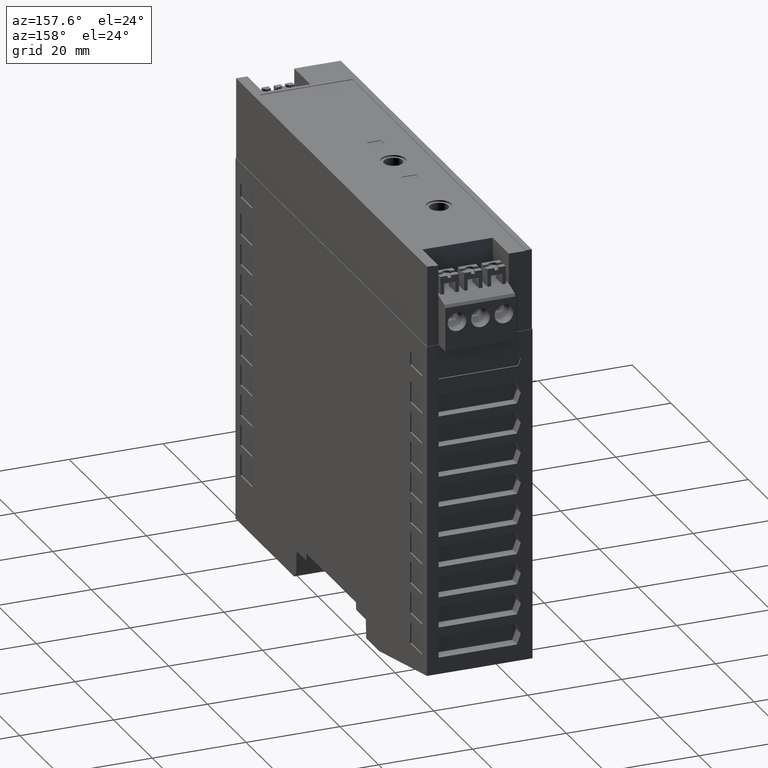
[diagram: clean part render]
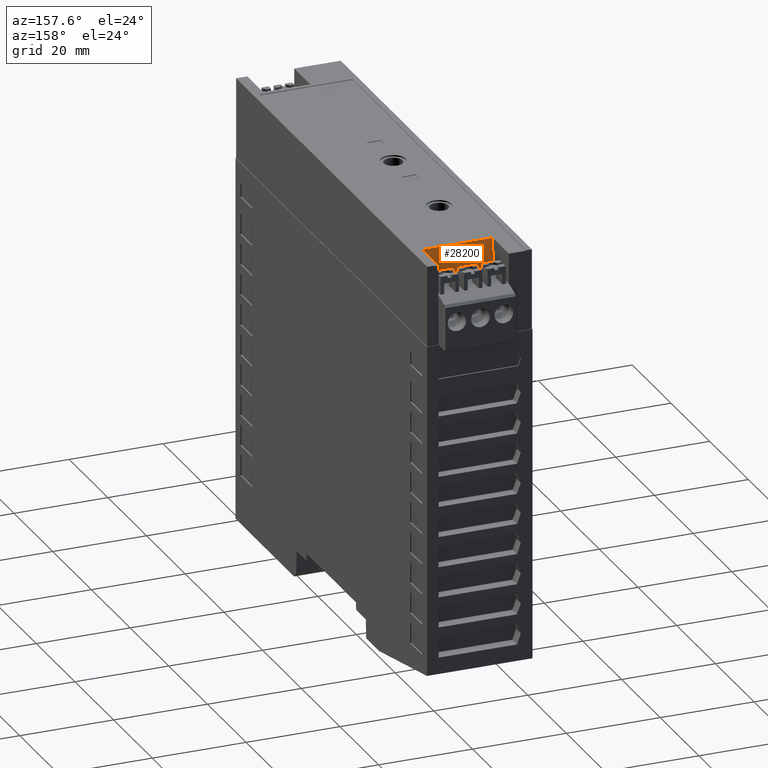
[diagram: same view with one face highlighted and labeled with its STEP entity id]
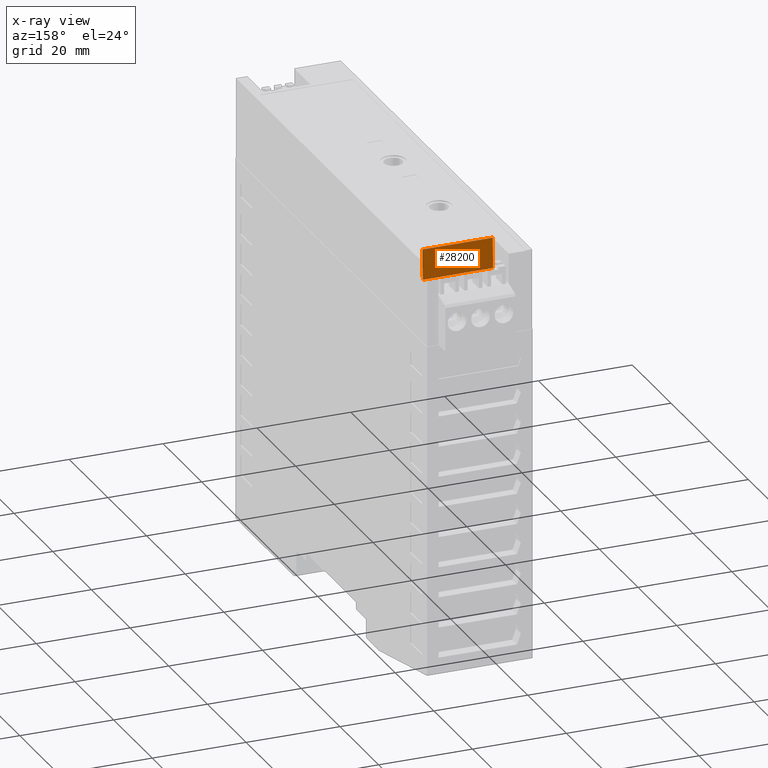
[diagram: x-ray of the same camera — body ghosted, the highlighted face saturated]
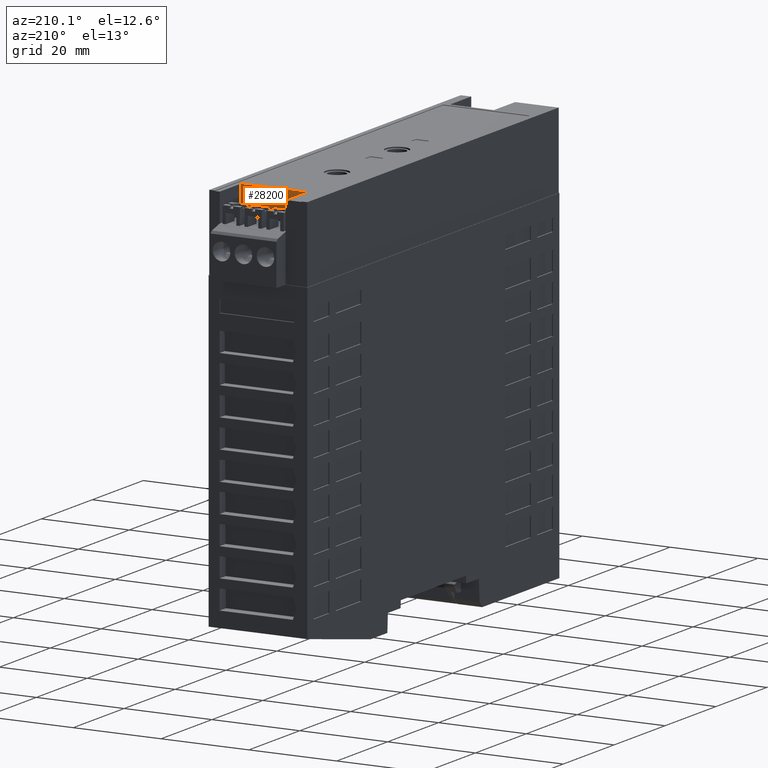
[diagram: same view with one face highlighted and labeled with its STEP entity id]
A machine part, auxiliary view. The second image highlights one B-rep face of the part: STEP entity #28200.
The next image is the same camera in x-ray: the body ghosted, the highlighted face saturated — about 0% of this face is hidden behind the body in this view.
A second angle (auxiliary view) of the same face is appended — the face is thin or edge-on in the first view.
In plain terms, the highlighted planar face has unit normal (0, 0.9994, 0.0349).
Its self-contained STEP definition (entity closure, byte-faithful):
#27810=CARTESIAN_POINT('',(-1.275,87.7499758387403,41.1296834977978));
#27820=DIRECTION('',(-0.,0.0348994967024999,0.999390827019096));
#27830=DIRECTION('',(1.,0.,0.));
#27840=AXIS2_PLACEMENT_3D('',#27810,#27820,#27830);
#27850=PLANE('',#27840);
#27860=CARTESIAN_POINT('',(-8.7749999999555,71.8,41.6866689274613));
#27870=DIRECTION('',(-1.450922715307E-14,-0.999390827019096,
0.0348994967024999));
#27880=VECTOR('',#27870,1.);
#27890=LINE('',#27860,#27880);
#27900=CARTESIAN_POINT('',(-8.77499999995525,88.9,41.0895237691525));
#27910=VERTEX_POINT('',#27900);
#27920=CARTESIAN_POINT('',(-8.77499999995535,82.4500000000646,
41.314762732372));
#27930=VERTEX_POINT('',#27920);
#27940=EDGE_CURVE('',#27910,#27930,#27890,.T.);
#27950=ORIENTED_EDGE('',*,*,#27940,.T.);
#27960=CARTESIAN_POINT('',(0.,88.9,41.0895237691525));
#27970=DIRECTION('',(-1.,0.,0.));
#27980=VECTOR('',#27970,1.);
#27990=LINE('',#27960,#27980);
#28000=CARTESIAN_POINT('',(6.225000000045,88.9,41.0895237691525));
#28010=VERTEX_POINT('',#28000);
#28020=EDGE_CURVE('',#28010,#27910,#27990,.T.);
#28030=ORIENTED_EDGE('',*,*,#28020,.T.);
#28040=CARTESIAN_POINT('',(6.225000000045,71.8,41.6866689274613));
#28050=DIRECTION('',(0.,-0.999390827019096,0.0348994967024999));
#28060=VECTOR('',#28050,1.);
#28070=LINE('',#28040,#28060);
#28080=CARTESIAN_POINT('',(6.225000000045,82.4500000000644,
41.314762732372));
#28090=VERTEX_POINT('',#28080);
#28100=EDGE_CURVE('',#28010,#28090,#28070,.T.);
#28110=ORIENTED_EDGE('',*,*,#28100,.F.);
#28120=CARTESIAN_POINT('',(0.,82.4500000000645,41.314762732372));
#28130=DIRECTION('',(1.,-1.63520199608201E-14,5.71025119776236E-16));
#28140=VECTOR('',#28130,1.);
#28150=LINE('',#28120,#28140);
#28160=EDGE_CURVE('',#27930,#28090,#28150,.T.);
#28170=ORIENTED_EDGE('',*,*,#28160,.T.);
#28180=EDGE_LOOP('',(#28170,#28110,#28030,#27950));
#28190=FACE_OUTER_BOUND('',#28180,.T.);
#28200=ADVANCED_FACE('',(#28190),#27850,.T.);